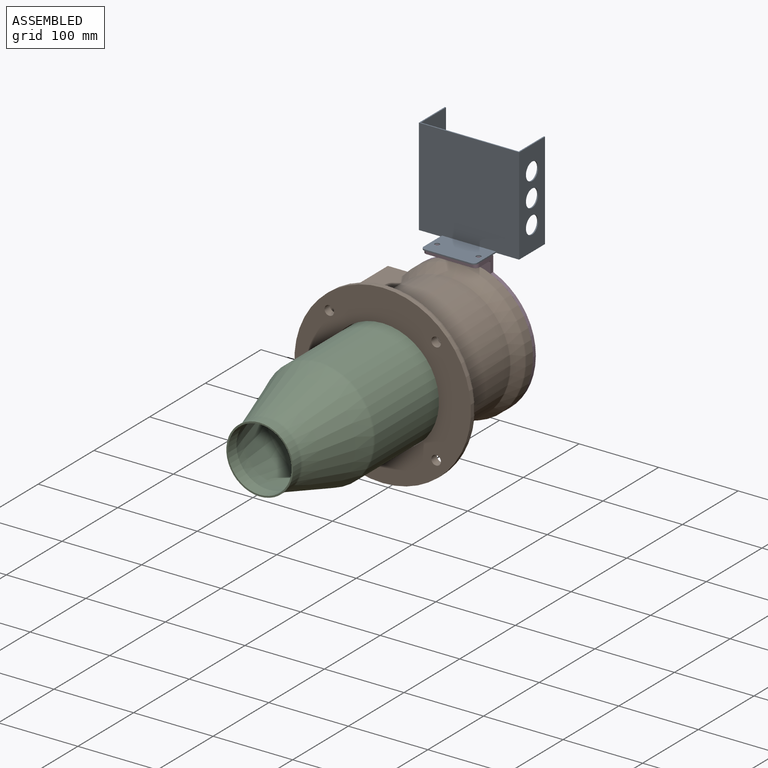
[diagram: assembled view]
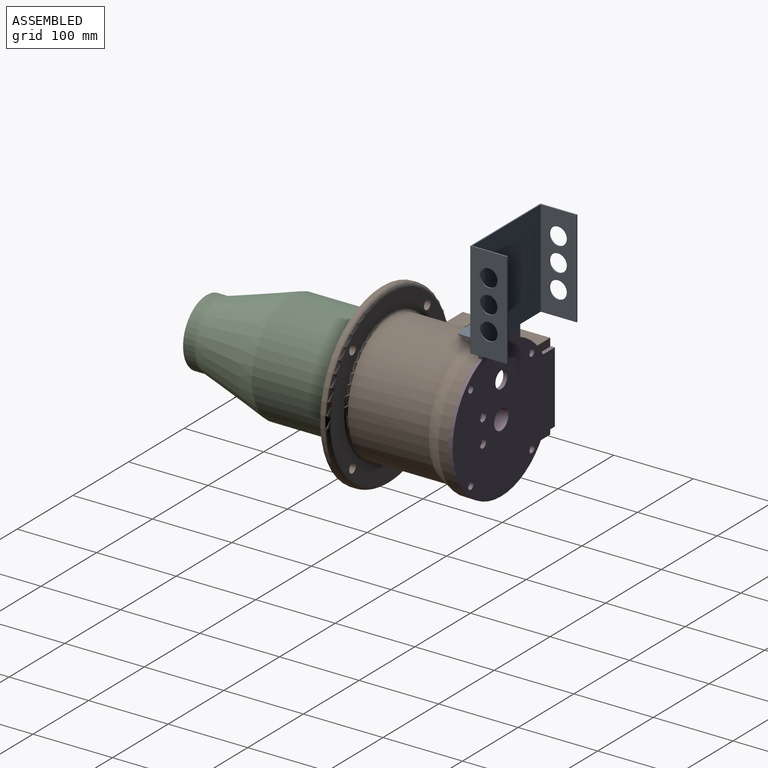
[diagram: assembled view, second angle]
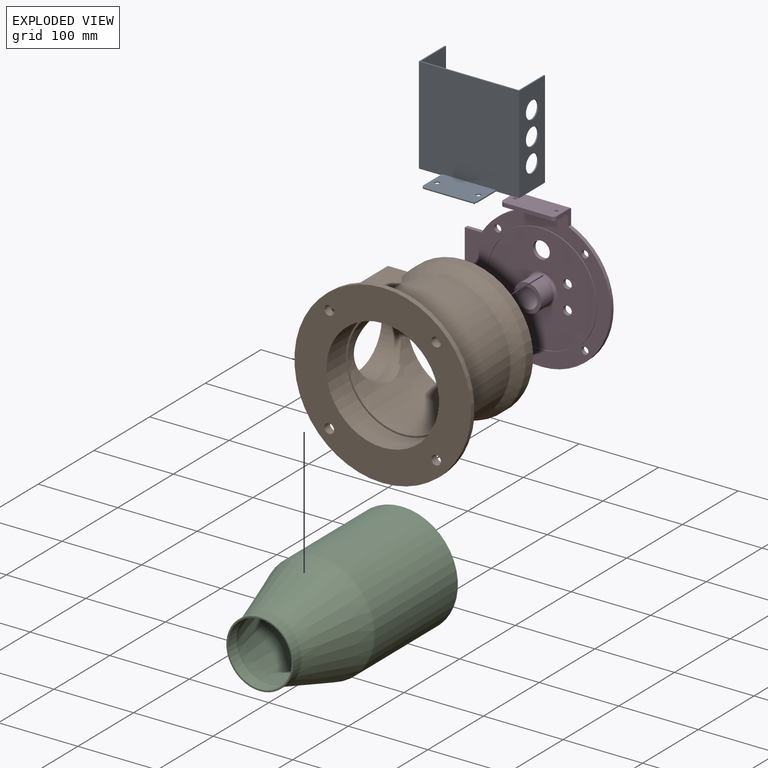
[diagram: exploded view]
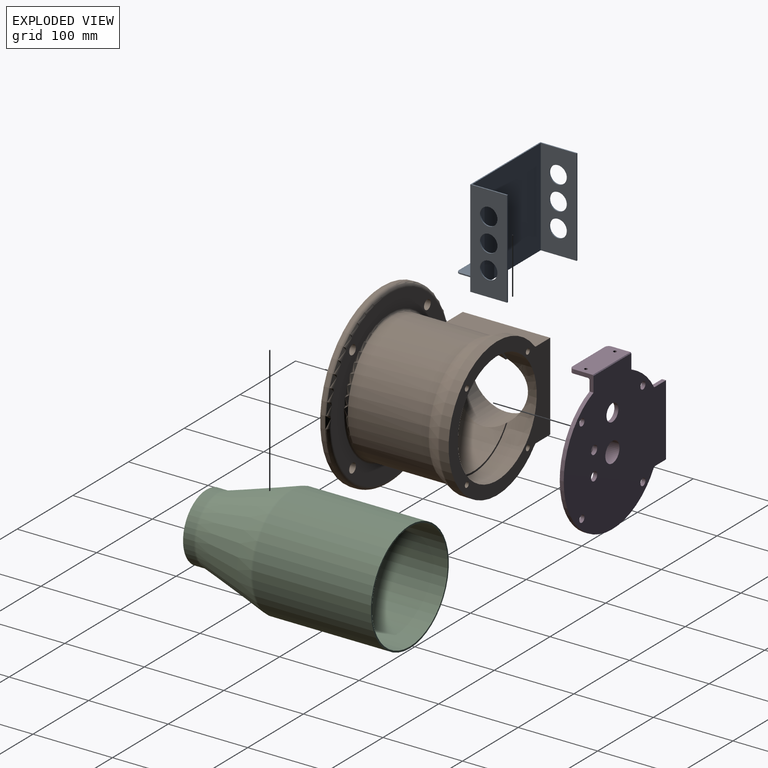
[diagram: exploded view, second angle]
ASSEMBLY  parts=4 mates=3
PART A: 24 faces, bbox 122x126x84.5 mm
  f0: plane 123x122mm, normal (0,0,1), area 15006mm2, adj f1,f3,f6,f8
  f1: plane 126x46.5mm, normal (1,0,0), area 324mm2, adj f0,f2,f4,f5,f6,f7,f8,f9
  f2: plane 122x46.5mm, normal (0,1,0), area 4532.6mm2, adj f1,f3,f5,f7,f17,f18,f19
  f3: plane 126x84.5mm, normal (-1,0,0), area 2840.7mm2, adj f0,f2,f4,f5,f6,f7,f8,f9
  f4: plane 122x46.5mm, normal (0,-1,0), area 4532.6mm2, adj f1,f3,f5,f9,f14,f15,f16
  f5: plane 126x122mm, normal (0,0,-1), area 15270mm2, adj f1,f2,f3,f4,f10,f11,f12
  f6: plane 122x45mm, normal (0,-1,0), area 4349.6mm2, adj f0,f1,f3,f7,f17,f18,f19
  f7: plane 122x1.5mm, normal (0,0,1), area 183mm2, adj f1,f2,f3,f6
  f8: plane 122x45mm, normal (0,1,0), area 4349.6mm2, adj f0,f1,f3,f9,f14,f15,f16
  f9: plane 122x1.5mm, normal (0,0,1), area 183mm2, adj f1,f3,f4,f8
  f10: plane 33x1.5mm, normal (0,-1,0), area 49.5mm2, adj f3,f5,f12,f23
  f11: plane 33x1.5mm, normal (0,1,0), area 49.5mm2, adj f3,f5,f12,f22
  f12: plane 68x38mm, normal (1,0,0), area 2516.7mm2, adj f5,f10,f11,f13,f20,f21,f22,f23
  f13: plane 58x1.5mm, normal (0,0,-1), area 87mm2, adj f3,f12,f22,f23
  f14: cylinder r=11mm len=22mm, axis (0,-1,0), area 103.7mm2, adj f4,f8
  f15: cylinder r=11mm len=22mm, axis (0,-1,0), area 103.7mm2, adj f4,f8
  f16: cylinder r=11mm len=22mm, axis (0,-1,0), area 103.7mm2, adj f4,f8
  f17: cylinder r=11mm len=22mm, axis (0,-1,0), area 103.7mm2, adj f2,f6
  f18: cylinder r=11mm len=22mm, axis (0,-1,0), area 103.7mm2, adj f2,f6
  f19: cylinder r=11mm len=22mm, axis (0,-1,0), area 103.7mm2, adj f2,f6
  f20: cylinder r=3mm len=6mm, axis (-1,0,0), area 28.3mm2, adj f3,f12
  f21: cylinder r=3mm len=6mm, axis (-1,0,0), area 28.3mm2, adj f3,f12
  f22: cylinder r=5mm len=5mm, axis (-1,0,0), area 11.8mm2, adj f3,f11,f12,f13
  f23: cylinder r=5mm len=5mm, axis (1,0,0), area 11.8mm2, adj f3,f10,f12,f13
PART B: 60 faces, bbox 240.4x145.1x240.4 mm
  f0: plane 141.5x131.54mm, normal (0,1,0), area 812.9mm2, adj f1,f5,f16,f17,f18
  f1: cylinder r=70.75mm len=141.5mm, axis (0,-1,0), area 9555.9mm2, adj f0,f6,f16
  f2: cylinder r=87.5mm len=175mm, axis (0,-1,0), area 5113.4mm2, adj f6,f27,f28,f52,f53,f54
  f3: cone r=80mm half-angle=23.8deg, axis (0,1,0), area 6796.7mm2, adj f29,f30,f31,f53
  f4: cylinder r=80mm len=160mm, axis (0,-1,0), area 40756.3mm2, adj f31,f34,f35,f36,f37
  f5: cylinder r=68.5mm len=137mm, axis (0,-1,0), area 24215.2mm2, adj f0,f11,f17
  f6: plane 182.5x175mm, normal (0,1,0), area 9677.1mm2, adj f1,f2,f13,f14,f15,f16,f27,f28
  f7: plane 212x212mm, normal (0,1,0), area 13204.1mm2, adj f37,f38,f39,f40,f41,f50
  f8: cylinder r=111mm len=222mm, axis (0,-1,0), area 3487.2mm2, adj f9,f50
  f9: plane 222x222mm, normal (0,-1,0), area 22529.7mm2, adj f8,f10,f38,f39,f40,f41
  f10: cylinder r=70.75mm len=141.5mm, axis (0,-1,0), area 15558.7mm2, adj f9,f11
  f11: plane 141.5x141.5mm, normal (0,-1,0), area 984.2mm2, adj f5,f10,f17
  f12: plane 110x32.84mm, normal (0,-1,0), area 2041.1mm2, adj f13,f14,f15,f36
  f13: plane 110.92x35.72mm, normal (0,0,-1), area 3695.3mm2, adj f6,f12,f15,f27,f29,f34,f36
  f14: plane 110.92x35.72mm, normal (0,0,1), area 3695.3mm2, adj f6,f12,f15,f28,f30,f35,f36
  f15: plane 110x110mm, normal (-1,0,0), area 5763.4mm2, adj f6,f12,f13,f14,f18,f56,f57,f58
  f16: extruded ~110x30mm, area 2784.8mm2, adj f0,f1,f6,f18
  f17: extruded ~110x80mm, area 4797.5mm2, adj f0,f5,f11,f18
  f18: cylinder r=44mm len=88mm, axis (-1,0,0), area 9239.8mm2, adj f0,f15,f16,f17
  f19: cylinder r=3.5mm len=19mm, axis (-1,0,0), area 417.8mm2, adj f20,f59
  f20: plane 7x7mm, normal (-1,0,0), area 38.5mm2, adj f19
  f21: cylinder r=3.5mm len=19mm, axis (-1,0,0), area 417.8mm2, adj f22,f58
  f22: plane 7x7mm, normal (-1,0,0), area 38.5mm2, adj f21
  f23: cylinder r=3.5mm len=19mm, axis (-1,0,0), area 417.8mm2, adj f24,f57
  f24: plane 7x7mm, normal (-1,0,0), area 38.5mm2, adj f23
  f25: cylinder r=3.5mm len=19mm, axis (-1,0,0), area 417.8mm2, adj f26,f56
  f26: plane 7x7mm, normal (-1,0,0), area 38.5mm2, adj f25
  f27: cylinder r=3mm len=13.63mm, axis (0,-1,0), area 33.6mm2, adj f2,f6,f13,f55
  f28: cylinder r=3mm len=13.63mm, axis (0,-1,0), area 33.6mm2, adj f2,f6,f14,f51
  f29: bspline ~28.11x17.81mm, area 51.5mm2, adj f3,f13,f32,f54,f55
  f30: bspline ~28.11x17.81mm, area 51.5mm2, adj f3,f14,f33,f51,f52
  f31: torus R=83mm, axis (0,-1,0), area 472.7mm2, adj f3,f4,f32,f33
  f32: sphere r=3mm, area 1mm2, adj f29,f31,f34
  f33: sphere r=3mm, area 1.6mm2, adj f30,f31,f35
  f34: cylinder r=3mm len=82.37mm, axis (0,-1,0), area 194.4mm2, adj f4,f13,f32,f36
  f35: cylinder r=3mm len=82.37mm, axis (0,-1,0), area 194.4mm2, adj f4,f14,f33,f36
  f36: torus R=83mm, axis (0,-1,0), area 571.9mm2, adj f4,f12,f13,f14,f34,f35
  f37: torus R=83mm, axis (0,1,0), area 2401mm2, adj f4,f7
  f38: cylinder r=6mm len=12mm, axis (0,-1,0), area 377mm2, adj f7,f9
  f39: cylinder r=6mm len=12mm, axis (0,-1,0), area 377mm2, adj f7,f9
  f40: cylinder r=6mm len=12mm, axis (0,-1,0), area 377mm2, adj f7,f9
  f41: cylinder r=6mm len=12mm, axis (0,-1,0), area 377mm2, adj f7,f9
  f42: cylinder r=3.5mm len=20mm, axis (0,1,0), area 439.8mm2, adj f6,f43
  f43: plane 7x7mm, normal (0,1,0), area 38.5mm2, adj f42
  f44: cylinder r=3.5mm len=20mm, axis (0,1,0), area 439.8mm2, adj f6,f45
  f45: plane 7x7mm, normal (0,1,0), area 38.5mm2, adj f44
  f46: cylinder r=3.5mm len=20mm, axis (0,1,0), area 439.8mm2, adj f6,f47
  f47: plane 7x7mm, normal (0,1,0), area 38.5mm2, adj f46
  f48: cylinder r=3.5mm len=20mm, axis (0,1,0), area 439.8mm2, adj f6,f49
  f49: plane 7x7mm, normal (0,1,0), area 38.5mm2, adj f48
  f50: torus R=106mm, axis (0,1,0), area 5388mm2, adj f7,f8
  f51: bspline ~3.27x2.23mm, area 1mm2, adj f28,f30,f52
  f52: bspline ~2.04x1.17mm, area 0.8mm2, adj f2,f30,f51,f53
  f53: torus R=82.5mm, axis (0,1,0), area 885.5mm2, adj f2,f3,f52,f54
  f54: bspline ~2.15x1.41mm, area 0.8mm2, adj f2,f29,f53,f55
  f55: bspline ~2.82x1.92mm, area 0.9mm2, adj f27,f29,f54
  f56: cone r=3.5mm half-angle=45deg, axis (-1,0,0), area 35.5mm2, adj f15,f25
  f57: cone r=3.5mm half-angle=45deg, axis (-1,0,0), area 35.5mm2, adj f15,f23
  f58: cone r=3.5mm half-angle=45deg, axis (-1,0,0), area 35.5mm2, adj f15,f21
  f59: cone r=3.5mm half-angle=45deg, axis (-1,0,0), area 35.5mm2, adj f15,f19
PART C: 10 faces, bbox 151.5x255.8x151.5 mm
  f0: cylinder r=70mm len=148.49mm, axis (0,-1,0), area 65310.6mm2, adj f1,f8
  f1: plane 140x140mm, normal (0,-1,0), area 867.1mm2, adj f0,f2
  f2: cylinder r=68mm len=149.7mm, axis (0,-1,0), area 63959.7mm2, adj f1,f3
  f3: cone r=68mm half-angle=17.1deg, axis (0,-1,0), area 32232.7mm2, adj f2,f4
  f4: cylinder r=40mm len=80mm, axis (0,-1,0), area 3845.7mm2, adj f3,f5
  f5: plane 84x84mm, normal (0,1,0), area 515.2mm2, adj f4,f6
  f6: cylinder r=42mm len=84mm, axis (0,-1,0), area 3560.7mm2, adj f5,f9
  f7: cone r=70mm half-angle=17.1deg, axis (0,-1,0), area 32365.9mm2, adj f8,f9
  f8: torus R=60mm, axis (0,1,0), area 1313.1mm2, adj f0,f7
  f9: torus R=52mm, axis (0,-1,0), area 792.3mm2, adj f6,f7
PART D: 33 faces, bbox 188x30x183.7 mm
  f0: plane 135x135mm, normal (0,1,0), area 12447.2mm2, adj f9,f11,f12,f23,f24
  f1: plane 25x19.88mm, normal (0,0,-1), area 199.7mm2, adj f2,f16,f17,f18,f19,f29,f31,f32
  f2: plane 68x29mm, normal (1,0,0), area 1933.6mm2, adj f1,f3,f20,f27,f28,f30,f31,f32
  f3: plane 25x19.88mm, normal (0,0,1), area 199.7mm2, adj f2,f4,f17,f18,f19,f29,f30,f32
  f4: cylinder r=87.5mm len=168.12mm, axis (0,1,0), area 1650.7mm2, adj f3,f5,f17,f18
  f5: plane 21.12x5mm, normal (-1,0,0), area 105.6mm2, adj f4,f6,f17,f18
  f6: plane 90x5mm, normal (0,0,-1), area 450mm2, adj f5,f7,f17,f18
  f7: plane 21.12x5mm, normal (1,0,0), area 105.6mm2, adj f6,f16,f17,f18
  f8: cylinder r=12.7mm len=30mm, axis (0,1,0), area 2393.9mm2, adj f17,f22
  f9: cylinder r=10.65mm len=21.3mm, axis (0,1,0), area 334.6mm2, adj f0,f17
  f10: cylinder r=4.5mm len=9mm, axis (0,1,0), area 141.4mm2, adj f17,f18
  f11: cylinder r=5.5mm len=11mm, axis (0,1,0), area 172.8mm2, adj f0,f17
  f12: cylinder r=5.5mm len=11mm, axis (0,1,0), area 172.8mm2, adj f0,f17
  f13: cylinder r=4.5mm len=9mm, axis (0,1,0), area 141.4mm2, adj f17,f18
  f14: cylinder r=4.5mm len=9mm, axis (0,1,0), area 141.4mm2, adj f17,f18
  f15: cylinder r=4.5mm len=9mm, axis (0,1,0), area 141.4mm2, adj f17,f18
  f16: cylinder r=87.5mm len=41.04mm, axis (0,1,0), area 276.3mm2, adj f1,f7,f17,f18
  f17: plane 187x183.67mm, normal (0,-1,0), area 24856.8mm2, adj f1,f3,f4,f5,f6,f7,f8,f9
  f18: plane 183.67x181mm, normal (0,1,0), area 9887.4mm2, adj f1,f3,f4,f5,f6,f7,f10,f13
  f19: plane 68x23mm, normal (-1,0,0), area 1525.6mm2, adj f1,f3,f20,f27,f28,f29,f30,f31
  f20: plane 58x5mm, normal (0,1,0), area 290mm2, adj f2,f19,f30,f31
  f21: cylinder r=17.5mm len=35mm, axis (0,-1,0), area 2419mm2, adj f22,f23
  f22: plane 35x35mm, normal (0,1,0), area 455.4mm2, adj f8,f21
  f23: torus R=20.5mm, axis (0,-1,0), area 550.4mm2, adj f0,f21
  f24: cylinder r=67.5mm len=135mm, axis (0,-1,0), area 424.1mm2, adj f0,f26
  f25: cylinder r=70.5mm len=141mm, axis (0,-1,0), area 443mm2, adj f18,f26
  f26: plane 141x141mm, normal (0,1,0), area 1300.6mm2, adj f24,f25
  f27: cylinder r=2.1mm len=5mm, axis (1,0,0), area 66mm2, adj f2,f19
  f28: cylinder r=2.1mm len=5mm, axis (1,0,0), area 66mm2, adj f2,f19
  f29: cylinder r=2mm len=68mm, axis (0,0,-1), area 213.6mm2, adj f1,f3,f18,f19
  f30: cylinder r=5mm len=5mm, axis (1,0,0), area 39.3mm2, adj f2,f3,f19,f20
  f31: cylinder r=5mm len=5mm, axis (-1,0,0), area 39.3mm2, adj f1,f2,f19,f20
  f32: plane 68x1mm, normal (0.71,-0.71,0), area 96.2mm2, adj f1,f2,f3,f17
PLACE A rot(axis=(-0.58,-0.58,-0.58),120deg) t=(121.49,128.89,125.88)mm
PLACE B t=(121.49,106.23,-35.62)mm
PLACE C rot(axis=(1,0,0),180deg) t=(121.49,8.89,-35.62)mm
PLACE D rot(axis=(0.71,0,0.71),180deg) t=(121.49,118.89,-35.62)mm
MATE planar D.f24 <-> B.f1  axis (0,-1,0) through (121.49,118.89,-35.62)mm
MATE planar C.f0 <-> B.f1  axis (0,1,0) through (121.49,8.89,-35.62)mm
MATE planar A.f21 <-> D.f28  axis (0,0,-1) through (147.49,108.89,64.88)mm
